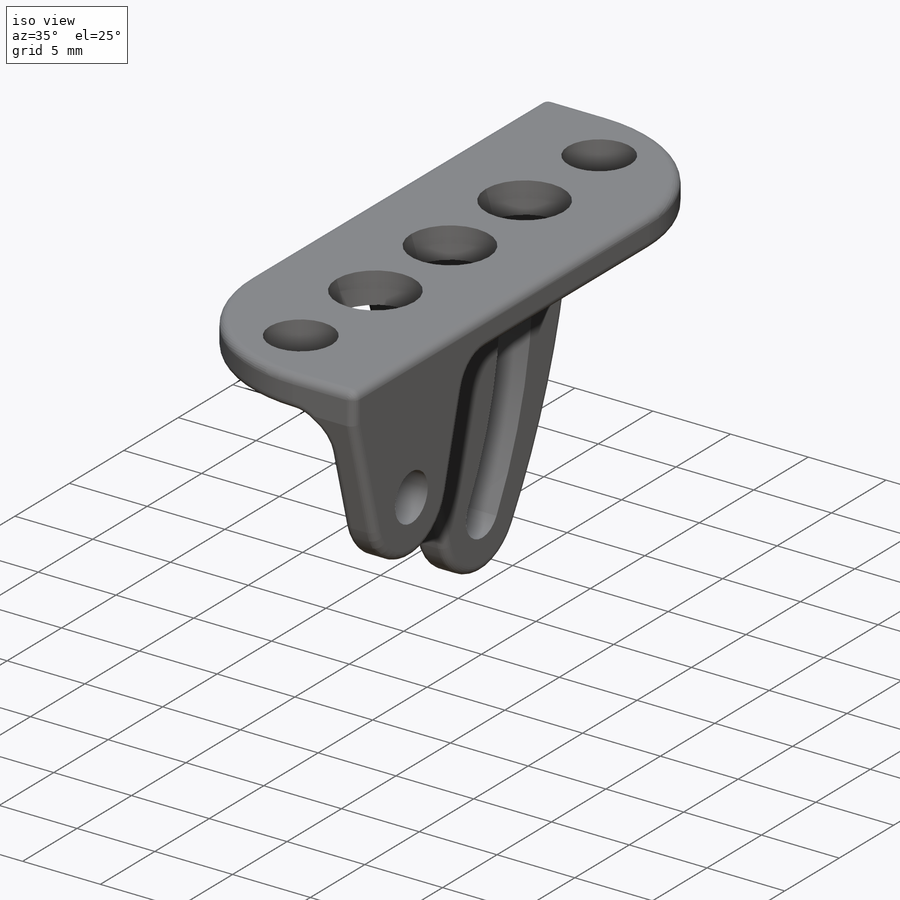
[diagram: iso view]
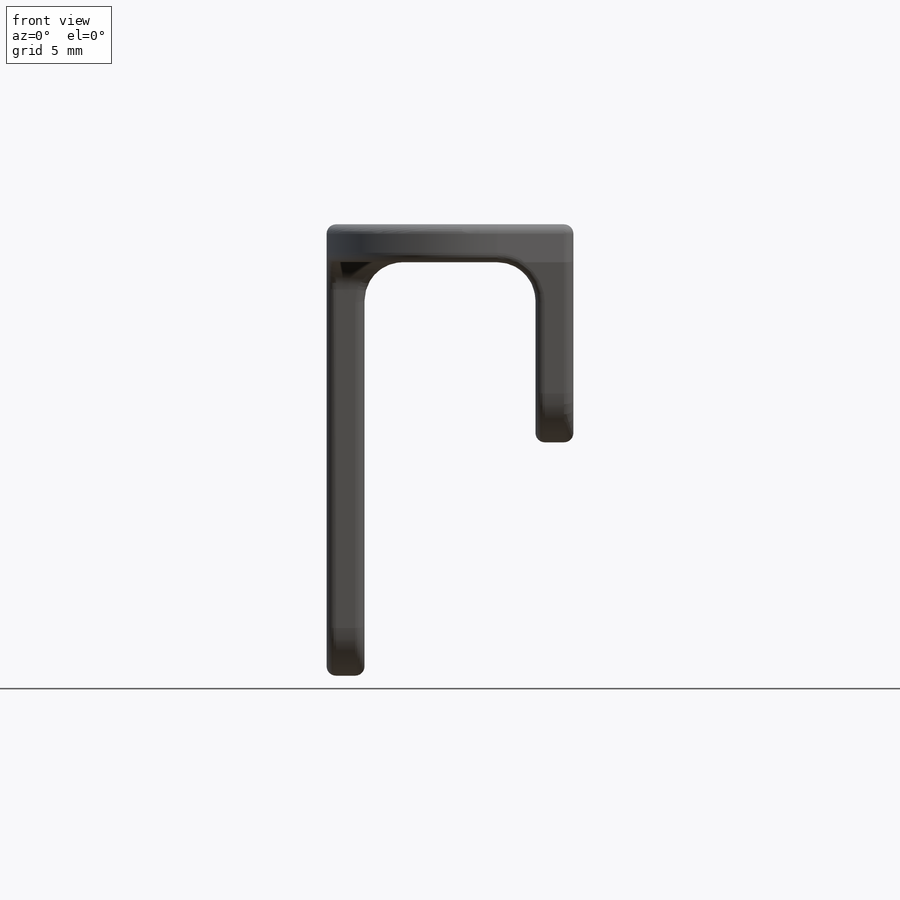
[diagram: front view]
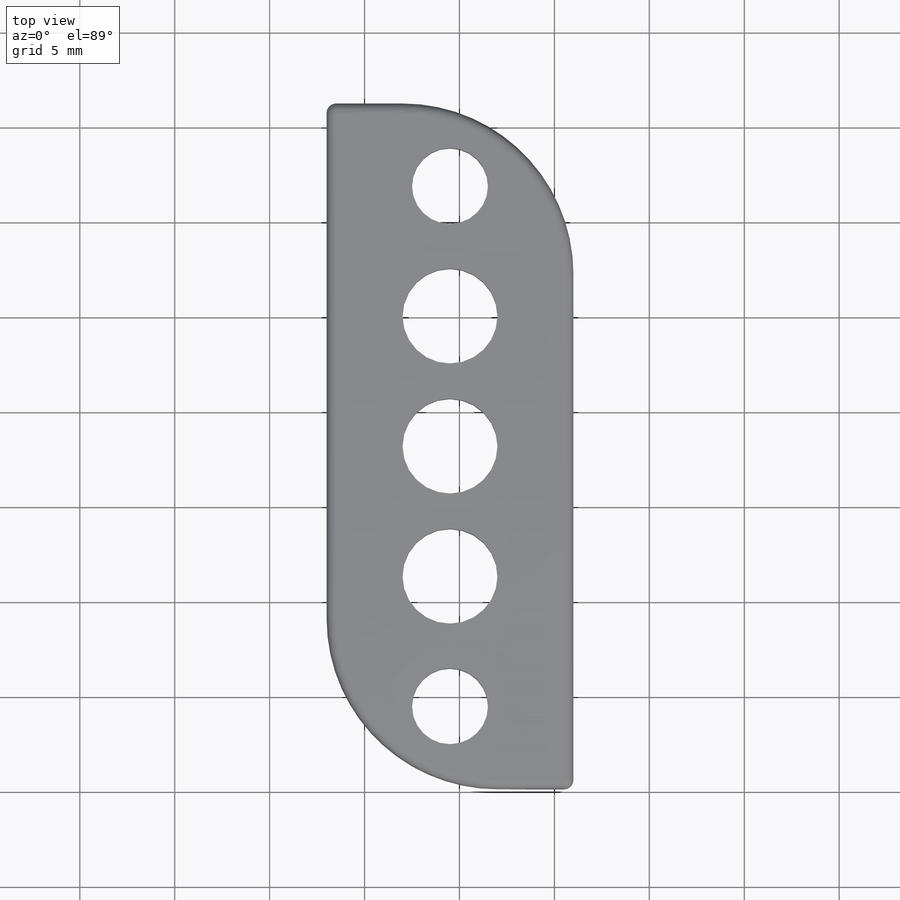
[diagram: top view]
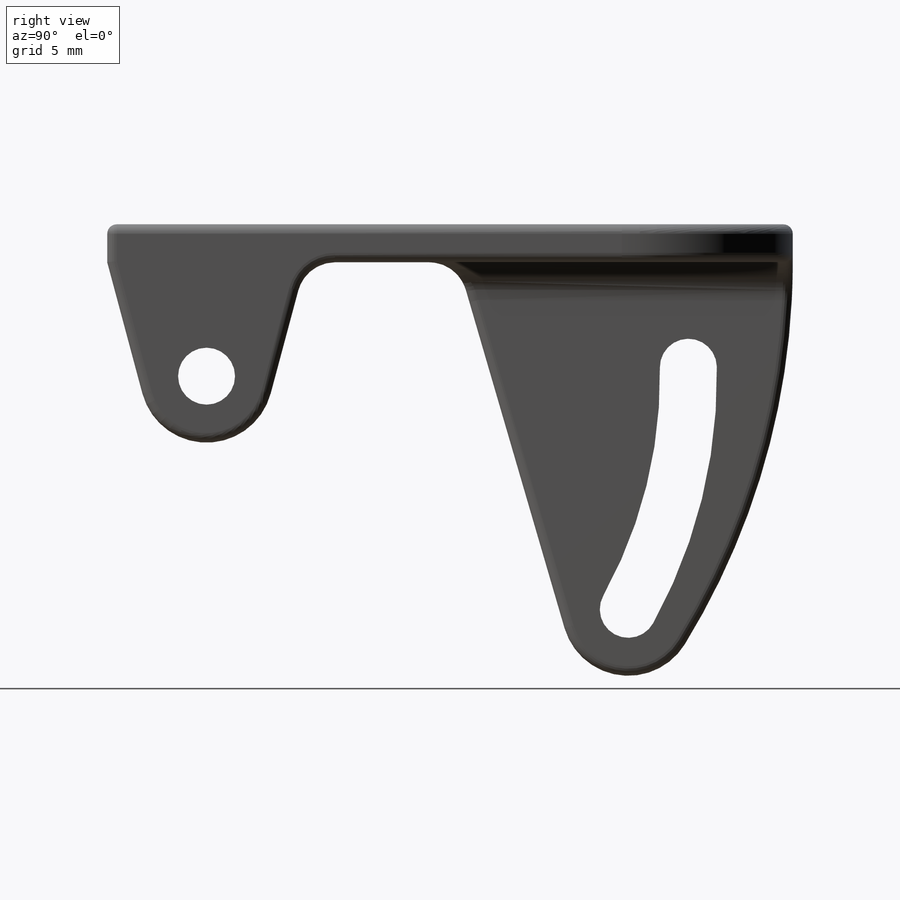
[diagram: right view]
SOLIDWORKS PART (.sldprt)
format: sldprt  version: not decoded by parser v0  size: 374,272 bytes
history: native  units: mm
features: sketch x4, extrude x3, fillet x3, material x1, plane x1, cut_extrude x1 (+11 scaffold rows collapsed)
feature tree (24):
  scaffold x11  (default folders/planes/origin — collapsed)
  material  "ABS"
  sketch  "Sketch1"  dims[c1.D1=3.0mm c1.D2=7.0mm c1.D3=~9.004977mm c2.D3=30.0deg c2.D4=6.0mm]
  extrude  "Extrude1"  Depth=2mm
  plane  "Plane1"  Offset=10mm
  sketch  "Sketch2"  dims[c1.D1=1.5mm c1.D2=25.38mm c1.D4=3.5mm c1.D3=25.37mm c2.D3=35.0deg c2.D4=5.5mm c2.D5=8.0mm c3.D3=12.28mm c3.D6=~21.994038mm c4.D6=30.0deg]
  extrude  "Extrude2"  Depth=2mm
  sketch  "Sketch4"
  extrude  "Extrude3"  Depth=2mm
  fillet  "Fillet3"  Radius=9mm
  fillet  "Fillet1"  Radius=2mm
  fillet  "Fillet2"  Radius=0.5mm
  sketch  "Sketch6"  dims[D1=4.0mm D2=~36.101162mm]
  cut_extrude  "Extrude4"  Depth=2mm
decode coverage: 10 of 11 modeling features carry decoded parameters
note: ~ marks probable driven/reference dimensions
note: suppression state not decoded; provenance and decode notes live in map.json
